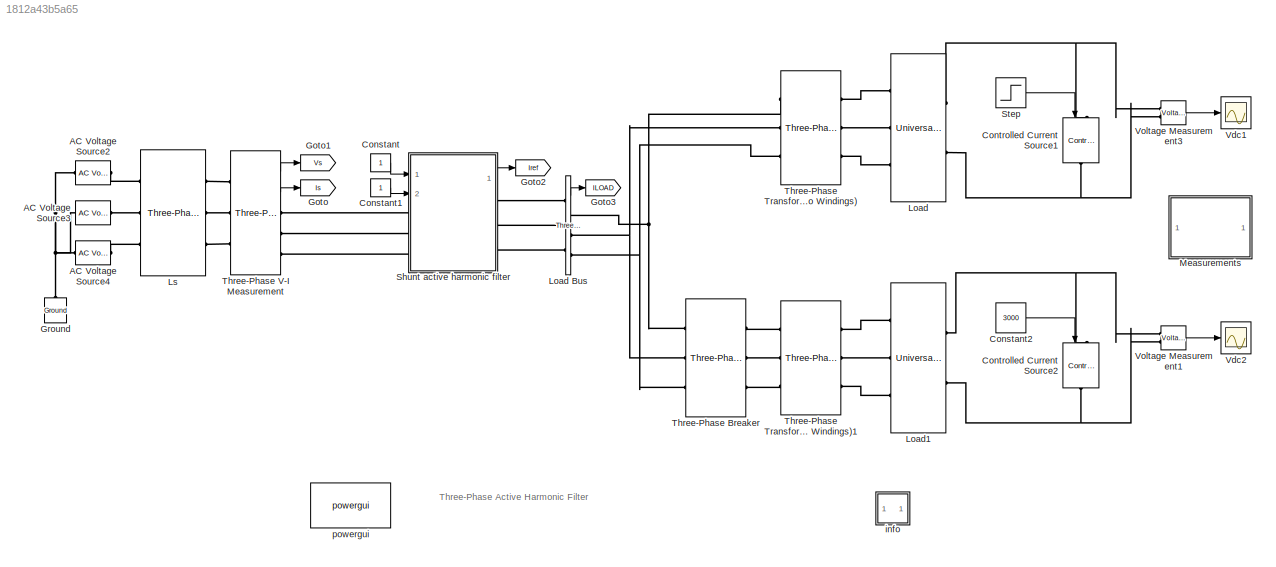
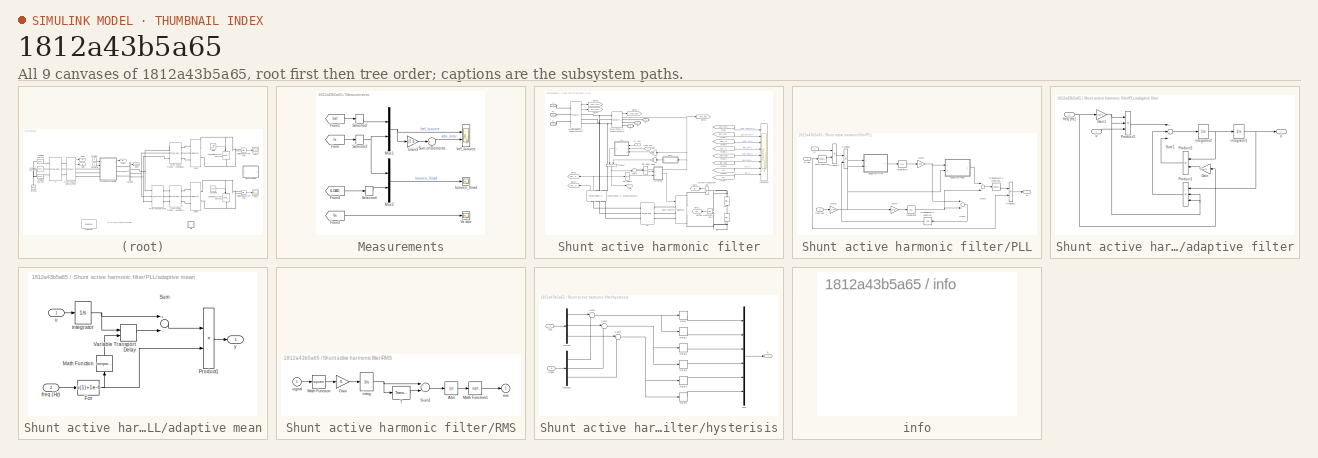
[diagram: thumbnail index - all 9 canvases of the model, root first then tree order]
MODEL slx_1812a43b5a65
KIND model
CONFIG AbsTol = auto
CONFIG EnableMultiTasking = on
CONFIG FixedStep = auto
CONFIG InitFcn = Ts=2e-6;\nload power_active_filter.mat
CONFIG MaxStep = auto
CONFIG MinStep = auto
CONFIG PreLoadFcn = load power_active_filter.mat
CONFIG RelTol = 1e-3
CONFIG SampleTimeConstraint = Unconstrained
CONFIG Solver = ode45
CONFIG SolverName = ode45
CONFIG StartTime = 0.0
CONFIG StopTime = 15/60
BLOCK [Reference] AC Voltage Source2  REF=powerlib/Electrical
Sources/AC Voltage Source
  Ports = [0, 0, 0, 0, 0, 1, 1]
  SourceBlock = powerlib/Electrical\nSources/AC Voltage Source
  SourceProductBaseCode = PS
  SourceProductName = Simscape Power Systems
  SourceType = AC Voltage Source
BLOCK [Reference] AC Voltage Source3  REF=powerlib/Electrical
Sources/AC Voltage Source
  Ports = [0, 0, 0, 0, 0, 1, 1]
  SourceBlock = powerlib/Electrical\nSources/AC Voltage Source
  SourceProductBaseCode = PS
  SourceProductName = Simscape Power Systems
  SourceType = AC Voltage Source
BLOCK [Reference] AC Voltage Source4  REF=powerlib/Electrical
Sources/AC Voltage Source
  Ports = [0, 0, 0, 0, 0, 1, 1]
  SourceBlock = powerlib/Electrical\nSources/AC Voltage Source
  SourceProductBaseCode = PS
  SourceProductName = Simscape Power Systems
  SourceType = AC Voltage Source
BLOCK [Constant] Constant
BLOCK [Constant] Constant1
BLOCK [Constant] Constant2
  Value = 3000
BLOCK [Reference] Controlled Current Source1  REF=powerlib/Electrical
Sources/Controlled Current Source
  Ports = [1, 0, 0, 0, 0, 1, 1]
  SourceBlock = powerlib/Electrical\nSources/Controlled Current Source
  SourceProductBaseCode = PS
  SourceProductName = Simscape Power Systems
  SourceType = Controlled Current Source
BLOCK [Reference] Controlled Current Source2  REF=powerlib/Electrical
Sources/Controlled Current Source
  Ports = [1, 0, 0, 0, 0, 1, 1]
  SourceBlock = powerlib/Electrical\nSources/Controlled Current Source
  SourceProductBaseCode = PS
  SourceProductName = Simscape Power Systems
  SourceType = Controlled Current Source
BLOCK [Goto] Goto
  GotoTag = Is
  TagVisibility = global
BLOCK [Goto] Goto1
  GotoTag = Vs
  TagVisibility = global
BLOCK [Goto] Goto2
  GotoTag = Iref
  TagVisibility = global
BLOCK [Goto] Goto3
  GotoTag = ILOAD
  TagVisibility = global
BLOCK [Reference] Ground  REF=powerlib/Elements/Ground
  Ports = [0, 0, 0, 0, 0, 1]
  SourceBlock = powerlib/Elements/Ground
  SourceProductBaseCode = PS
  SourceProductName = Simscape Power Systems
  SourceType = Ground
BLOCK [Reference] Load  REF=powerlib/Power
Electronics/Universal Bridge
  Ports = [0, 0, 0, 0, 0, 3, 2]
  SourceBlock = powerlib/Power\nElectronics/Universal Bridge
  SourceProductBaseCode = PS
  SourceProductName = Simscape Power Systems
  SourceType = Universal Bridge
BLOCK [Reference] Load Bus  REF=powerlib/Measurements/Three-Phase
V-I Measurement
  Ports = [0, 1, 0, 0, 0, 3, 3]
  SourceBlock = powerlib/Measurements/Three-Phase\nV-I Measurement
  SourceProductBaseCode = PS
  SourceProductName = Simscape Power Systems
  SourceType = Three-Phase VI Measurement
BLOCK [Reference] Load1  REF=powerlib/Power
Electronics/Universal Bridge
  Ports = [0, 0, 0, 0, 0, 3, 2]
  SourceBlock = powerlib/Power\nElectronics/Universal Bridge
  SourceProductBaseCode = PS
  SourceProductName = Simscape Power Systems
  SourceType = Universal Bridge
BLOCK [Reference] Ls  REF=powerlib/Elements/Three-Phase
Series RLC Branch
  AttributesFormatString = \n
  Ports = [0, 0, 0, 0, 0, 3, 3]
  SourceBlock = powerlib/Elements/Three-Phase\nSeries RLC Branch
  SourceProductBaseCode = PS
  SourceProductName = Simscape Power Systems
  SourceType = Three-Phase Series RLC Branch
BLOCK [SubSystem] Measurements
  Ports = []
  RequestExecContextInheritance = off
  Variant = off
BLOCK [From] Measurements/From
  CloseFcn = tagdialog Close
  GotoTag = Is
  TagVisibility = global
BLOCK [From] Measurements/From1
  CloseFcn = tagdialog Close
  GotoTag = Iref
  TagVisibility = global
BLOCK [From] Measurements/From3
  CloseFcn = tagdialog Close
  GotoTag = Vs
  TagVisibility = global
BLOCK [From] Measurements/From4
  CloseFcn = tagdialog Close
  GotoTag = ILOAD
  TagVisibility = global
BLOCK [Gain] Measurements/Gain3
  Gain = [1 -1]
  OutDataTypeStr = Inherit: Inherit via internal rule
  ParamDataTypeStr = Inherit: Inherit via internal rule
  SaturateOnIntegerOverflow = off
BLOCK [Scope] Measurements/Iref_Isource
  NumInputPorts = 2
  Ports = [2]
  ScopeSpecificationString = C++SS(StrPVP('Location','[188, 365, 512, 604]'),StrPVP('Open','off'),MxPVP('AxesTitles',53,'struct(''axes1'',''%<SignalLabel>'',''axes2'',''%<SignalLabel>'')'),StrPVP('ShowLegends','off'),StrPVP('LimitDataPoints','off'),StrPVP('DataFormat','Array'),StrPVP('Decimation','1'),StrPVP('BlockParamSampleInput','off'))
BLOCK [Scope] Measurements/Isource_Iload
  NumInputPorts = 1
  Ports = [1]
  ScopeSpecificationString = C++SS(StrPVP('Location','[188, 365, 512, 604]'),StrPVP('Open','off'),MxPVP('AxesTitles',53,'struct(''axes1'',''%<SignalLabel>'')'),StrPVP('ShowLegends','off'),StrPVP('LimitDataPoints','off'),StrPVP('DataFormat','Array'),StrPVP('Decimation','1'),StrPVP('BlockParamSampleInput','off'))
BLOCK [Mux] Measurements/Mux1
  DisplayOption = bar
  Inputs = 2
  Ports = [2, 1]
BLOCK [Mux] Measurements/Mux2
  DisplayOption = bar
  Inputs = 2
  Ports = [2, 1]
BLOCK [Selector] Measurements/Selector2
  IndexOptions = Index vector (dialog)
  Indices = 1
  InputPortWidth = 3
  OutputSizes = 1
  Ports = [1, 1]
BLOCK [Selector] Measurements/Selector3
  IndexOptions = Index vector (dialog)
  Indices = 1
  InputPortWidth = 3
  OutputSizes = 1
  Ports = [1, 1]
BLOCK [Selector] Measurements/Selector4
  IndexOptions = Index vector (dialog)
  Indices = 1
  InputPortWidth = 3
  OutputSizes = 1
  Ports = [1, 1]
BLOCK [Sum] Measurements/Sum of Elements
  InputSameDT = off
  Inputs = +
  OutDataTypeStr = Inherit: Inherit via internal rule
  Ports = [1, 1]
  SaturateOnIntegerOverflow = off
BLOCK [Scope] Measurements/Vs abc
  NumInputPorts = 1
  Ports = [1]
  ScopeSpecificationString = C++SS(StrPVP('Location','[188, 365, 512, 604]'),StrPVP('Open','off'),MxPVP('AxesTitles',53,'struct(''axes1'',''%<SignalLabel>'')'),StrPVP('ShowLegends','off'),StrPVP('LimitDataPoints','off'),StrPVP('DataFormat','Array'),StrPVP('Decimation','1'),StrPVP('BlockParamSampleInput','off'))
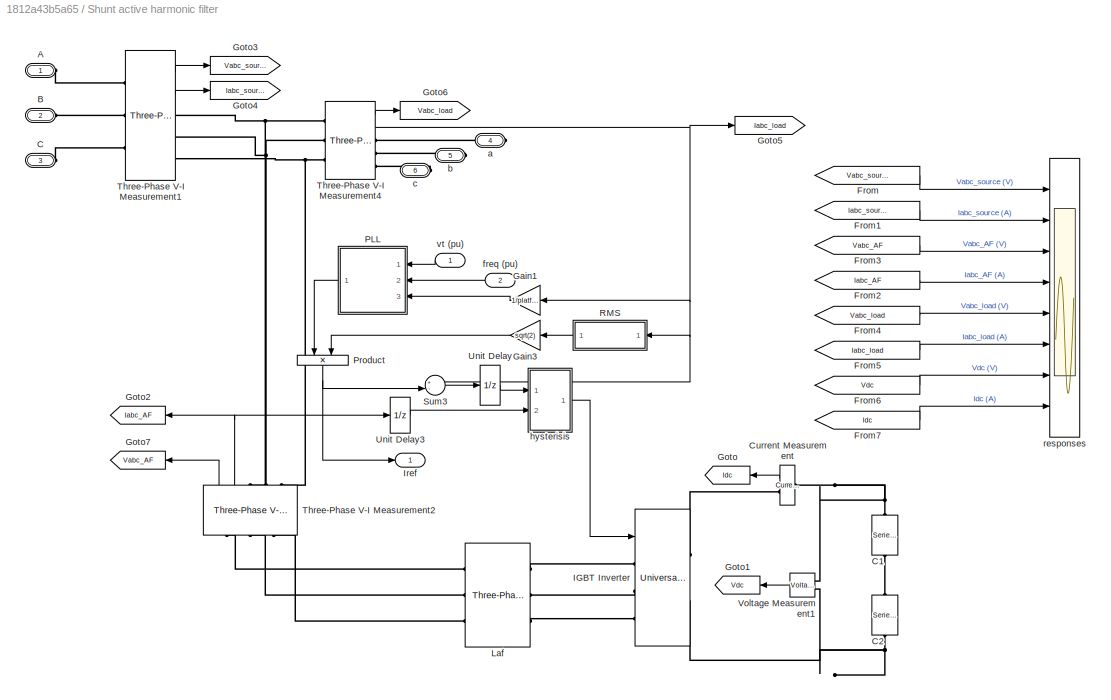
BLOCK [SubSystem] Shunt active harmonic filter
  Ports = [2, 1, 0, 0, 0, 3, 3]
  RequestExecContextInheritance = off
  Variant = off
BLOCK [PMIOPort] Shunt active harmonic filter/A
  Port = 1
  Side = Left
BLOCK [PMIOPort] Shunt active harmonic filter/B
  Port = 2
  Side = Left
BLOCK [PMIOPort] Shunt active harmonic filter/C
  Port = 3
  Side = Left
BLOCK [Reference] Shunt active harmonic filter/C1  REF=powerlib/Elements/Series RLC Branch
  Ports = [0, 0, 0, 0, 0, 1, 1]
  SourceBlock = powerlib/Elements/Series RLC Branch
  SourceProductBaseCode = PS
  SourceProductName = Simscape Power Systems
  SourceType = Series RLC Branch
BLOCK [Reference] Shunt active harmonic filter/C2  REF=powerlib/Elements/Series RLC Branch
  Ports = [0, 0, 0, 0, 0, 1, 1]
  SourceBlock = powerlib/Elements/Series RLC Branch
  SourceProductBaseCode = PS
  SourceProductName = Simscape Power Systems
  SourceType = Series RLC Branch
BLOCK [Reference] Shunt active harmonic filter/Current Measurement  REF=powerlib/Measurements/Current Measurement
  Ports = [0, 1, 0, 0, 0, 1, 1]
  SourceBlock = powerlib/Measurements/Current Measurement
  SourceProductBaseCode = PS
  SourceProductName = Simscape Power Systems
  SourceType = Current Measurement
BLOCK [From] Shunt active harmonic filter/From
  CloseFcn = tagdialog Close
  GotoTag = Vabc_source
BLOCK [From] Shunt active harmonic filter/From1
  CloseFcn = tagdialog Close
  GotoTag = Iabc_source
BLOCK [From] Shunt active harmonic filter/From2
  CloseFcn = tagdialog Close
  GotoTag = Iabc_AF
BLOCK [From] Shunt active harmonic filter/From3
  CloseFcn = tagdialog Close
  GotoTag = Vabc_AF
BLOCK [From] Shunt active harmonic filter/From4
  CloseFcn = tagdialog Close
  GotoTag = Vabc_load
BLOCK [From] Shunt active harmonic filter/From5
  CloseFcn = tagdialog Close
  GotoTag = Iabc_load
BLOCK [From] Shunt active harmonic filter/From6
  CloseFcn = tagdialog Close
  GotoTag = Vdc
  TagVisibility = global
BLOCK [From] Shunt active harmonic filter/From7
  CloseFcn = tagdialog Close
  GotoTag = Idc
BLOCK [Gain] Shunt active harmonic filter/Gain1
  Gain = 1/platform.activefilter.max_current
  OutDataTypeStr = Inherit: Inherit via internal rule
  ParamDataTypeStr = Inherit: Inherit via internal rule
  SaturateOnIntegerOverflow = off
BLOCK [Gain] Shunt active harmonic filter/Gain3
  Gain = sqrt(2)
  OutDataTypeStr = Inherit: Inherit via internal rule
  ParamDataTypeStr = Inherit: Inherit via internal rule
  SaturateOnIntegerOverflow = off
BLOCK [Goto] Shunt active harmonic filter/Goto
  GotoTag = Idc
BLOCK [Goto] Shunt active harmonic filter/Goto1
  GotoTag = Vdc
  TagVisibility = global
BLOCK [Goto] Shunt active harmonic filter/Goto2
  GotoTag = Iabc_AF
BLOCK [Goto] Shunt active harmonic filter/Goto3
  GotoTag = Vabc_source
BLOCK [Goto] Shunt active harmonic filter/Goto4
  GotoTag = Iabc_source
BLOCK [Goto] Shunt active harmonic filter/Goto5
  GotoTag = Iabc_load
BLOCK [Goto] Shunt active harmonic filter/Goto6
  GotoTag = Vabc_load
BLOCK [Goto] Shunt active harmonic filter/Goto7
  GotoTag = Vabc_AF
BLOCK [Reference] Shunt active harmonic filter/IGBT Inverter  REF=powerlib/Power
Electronics/Universal Bridge
  Ports = [1, 0, 0, 0, 0, 3, 2]
  SourceBlock = powerlib/Power\nElectronics/Universal Bridge
  SourceProductBaseCode = PS
  SourceProductName = Simscape Power Systems
  SourceType = Universal Bridge
BLOCK [Outport] Shunt active harmonic filter/Iref
  IconDisplay = Port number
BLOCK [Reference] Shunt active harmonic filter/Laf  REF=powerlib/Elements/Three-Phase
Series RLC Branch
  AttributesFormatString = \n
  Ports = [0, 0, 0, 0, 0, 3, 3]
  SourceBlock = powerlib/Elements/Three-Phase\nSeries RLC Branch
  SourceProductBaseCode = PS
  SourceProductName = Simscape Power Systems
  SourceType = Three-Phase Series RLC Branch
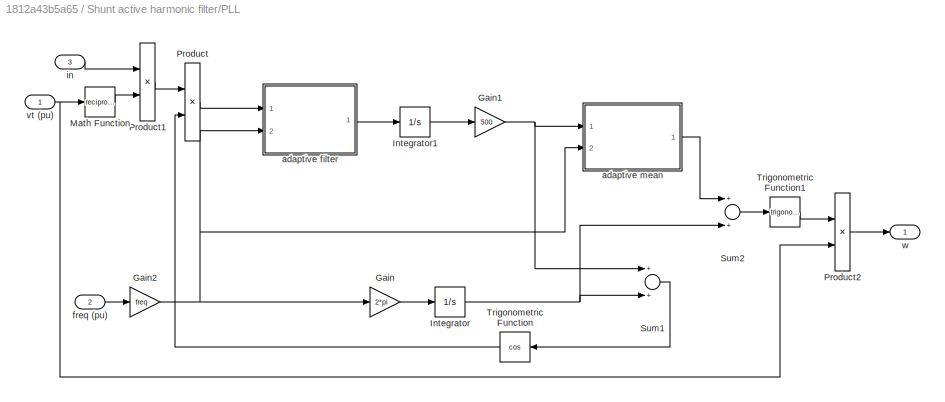
BLOCK [SubSystem] Shunt active harmonic filter/PLL
  Ports = [3, 1]
  RequestExecContextInheritance = off
  Variant = off
BLOCK [Gain] Shunt active harmonic filter/PLL/Gain
  Gain = 2*pi
  OutDataTypeStr = Inherit: Inherit via internal rule
  ParamDataTypeStr = Inherit: Inherit via internal rule
  SaturateOnIntegerOverflow = off
BLOCK [Gain] Shunt active harmonic filter/PLL/Gain1
  Gain = 500
  OutDataTypeStr = Inherit: Inherit via internal rule
  ParamDataTypeStr = Inherit: Inherit via internal rule
  SaturateOnIntegerOverflow = off
BLOCK [Gain] Shunt active harmonic filter/PLL/Gain2
  Gain = freq
  OutDataTypeStr = Inherit: Inherit via internal rule
  ParamDataTypeStr = Inherit: Inherit via internal rule
  SaturateOnIntegerOverflow = off
BLOCK [Integrator] Shunt active harmonic filter/PLL/Integrator
  Ports = [1, 1]
BLOCK [Integrator] Shunt active harmonic filter/PLL/Integrator1
  Ports = [1, 1]
BLOCK [Math] Shunt active harmonic filter/PLL/Math Function
  Operator = reciprocal
  Ports = [1, 1]
BLOCK [Product] Shunt active harmonic filter/PLL/Product
  InputSameDT = off
  Inputs = **
  OutDataTypeStr = Inherit: Inherit via internal rule
  Ports = [2, 1]
  SaturateOnIntegerOverflow = off
BLOCK [Product] Shunt active harmonic filter/PLL/Product1
  InputSameDT = off
  Inputs = **
  OutDataTypeStr = Inherit: Inherit via internal rule
  Ports = [2, 1]
  SaturateOnIntegerOverflow = off
BLOCK [Product] Shunt active harmonic filter/PLL/Product2
  InputSameDT = off
  Inputs = **
  OutDataTypeStr = Inherit: Inherit via internal rule
  Ports = [2, 1]
  SaturateOnIntegerOverflow = off
BLOCK [Sum] Shunt active harmonic filter/PLL/Sum1
  Ports = [2, 1]
BLOCK [Sum] Shunt active harmonic filter/PLL/Sum2
  Ports = [2, 1]
BLOCK [Trigonometry] Shunt active harmonic filter/PLL/Trigonometric Function
  Operator = cos
  Ports = [1, 1]
BLOCK [Trigonometry] Shunt active harmonic filter/PLL/Trigonometric Function1
  Ports = [1, 1]
BLOCK [SubSystem] Shunt active harmonic filter/PLL/adaptive filter
  Ports = [2, 1]
  RequestExecContextInheritance = off
  Variant = off
BLOCK [Gain] Shunt active harmonic filter/PLL/adaptive filter/Gain
  Gain = 2*pi*2*0.707*2
  OutDataTypeStr = Inherit: Inherit via internal rule
  ParamDataTypeStr = Inherit: Inherit via internal rule
  SaturateOnIntegerOverflow = off
BLOCK [Gain] Shunt active harmonic filter/PLL/adaptive filter/Gain1
  Gain = 2*pi*2
  OutDataTypeStr = Inherit: Inherit via internal rule
  ParamDataTypeStr = Inherit: Inherit via internal rule
  SaturateOnIntegerOverflow = off
BLOCK [Product] Shunt active harmonic filter/PLL/adaptive filter/Product1
  InputSameDT = off
  Inputs = ***
  OutDataTypeStr = Inherit: Inherit via internal rule
  Ports = [3, 1]
  SaturateOnIntegerOverflow = off
BLOCK [Product] Shunt active harmonic filter/PLL/adaptive filter/Product2
  InputSameDT = off
  Inputs = **
  OutDataTypeStr = Inherit: Inherit via internal rule
  Ports = [2, 1]
  SaturateOnIntegerOverflow = off
BLOCK [Product] Shunt active harmonic filter/PLL/adaptive filter/Product3
  InputSameDT = off
  Inputs = ***
  OutDataTypeStr = Inherit: Inherit via internal rule
  Ports = [3, 1]
  SaturateOnIntegerOverflow = off
BLOCK [Sum] Shunt active harmonic filter/PLL/adaptive filter/Sum1
  Inputs = +--
  Ports = [3, 1]
BLOCK [Inport] Shunt active harmonic filter/PLL/adaptive filter/freq (Hz)
  IconDisplay = Port number
  Port = 2
BLOCK [Integrator] Shunt active harmonic filter/PLL/adaptive filter/integrator1
  Ports = [1, 1]
BLOCK [Integrator] Shunt active harmonic filter/PLL/adaptive filter/integrator2
  Ports = [1, 1]
BLOCK [Inport] Shunt active harmonic filter/PLL/adaptive filter/u
  IconDisplay = Port number
BLOCK [Outport] Shunt active harmonic filter/PLL/adaptive filter/y
  IconDisplay = Port number
BLOCK [SubSystem] Shunt active harmonic filter/PLL/adaptive mean
  Ports = [2, 1]
  RequestExecContextInheritance = off
  Variant = off
BLOCK [Fcn] Shunt active harmonic filter/PLL/adaptive mean/Fcn
  Expr = u(1)+1e-6
BLOCK [Math] Shunt active harmonic filter/PLL/adaptive mean/Math Function
  Operator = reciprocal
  Ports = [1, 1]
BLOCK [Product] Shunt active harmonic filter/PLL/adaptive mean/Product1
  InputSameDT = off
  Inputs = **
  OutDataTypeStr = Inherit: Inherit via internal rule
  Ports = [2, 1]
  SaturateOnIntegerOverflow = off
BLOCK [Sum] Shunt active harmonic filter/PLL/adaptive mean/Sum
  Inputs = +-
  Ports = [2, 1]
BLOCK [VariableTransportDelay] Shunt active harmonic filter/PLL/adaptive mean/Variable Transport Delay
  MaximumDelay = 1/40
  MaximumPoints = 16000
  Ports = [2, 1]
BLOCK [Inport] Shunt active harmonic filter/PLL/adaptive mean/freq (Hz)
  IconDisplay = Port number
  Port = 2
BLOCK [Integrator] Shunt active harmonic filter/PLL/adaptive mean/integrator
  Ports = [1, 1]
BLOCK [Inport] Shunt active harmonic filter/PLL/adaptive mean/u
  IconDisplay = Port number
BLOCK [Outport] Shunt active harmonic filter/PLL/adaptive mean/y
  IconDisplay = Port number
BLOCK [Inport] Shunt active harmonic filter/PLL/freq (pu)
  IconDisplay = Port number
  Port = 2
BLOCK [Inport] Shunt active harmonic filter/PLL/in
  IconDisplay = Port number
  Port = 3
BLOCK [Inport] Shunt active harmonic filter/PLL/vt (pu)
  IconDisplay = Port number
BLOCK [Outport] Shunt active harmonic filter/PLL/w
  IconDisplay = Port number
BLOCK [Product] Shunt active harmonic filter/Product
  InputSameDT = off
  OutDataTypeStr = Inherit: Inherit via internal rule
  Ports = [2, 1]
  SaturateOnIntegerOverflow = off
BLOCK [SubSystem] Shunt active harmonic filter/RMS
  DialogController = POWERSYS.PowerSysDialog
  Ports = [1, 1]
  RequestExecContextInheritance = off
  Variant = off
BLOCK [Abs] Shunt active harmonic filter/RMS/Abs
BLOCK [Gain] Shunt active harmonic filter/RMS/Gain
  Gain = f1
BLOCK [Math] Shunt active harmonic filter/RMS/Math Function
  Operator = square
  Ports = [1, 1]
BLOCK [Math] Shunt active harmonic filter/RMS/Math Function1
  Operator = sqrt
  Ports = [1, 1]
BLOCK [Sum] Shunt active harmonic filter/RMS/Sum1
  Inputs = +-
  Ports = [2, 1]
BLOCK [TransportDelay] Shunt active harmonic filter/RMS/T
  BufferSize = 9216
  DelayTime = 1/f1
  Ports = [1, 1]
BLOCK [Integrator] Shunt active harmonic filter/RMS/integ
  Ports = [1, 1]
BLOCK [Outport] Shunt active harmonic filter/RMS/rms
  IconDisplay = Port number
  InitialOutput = 0
BLOCK [Inport] Shunt active harmonic filter/RMS/signal
  IconDisplay = Port number
BLOCK [Sum] Shunt active harmonic filter/Sum3
  IconShape = round
  InputSameDT = off
  Inputs = +-|
  OutDataTypeStr = Inherit: Inherit via internal rule
  Ports = [2, 1]
  SaturateOnIntegerOverflow = off
BLOCK [Reference] Shunt active harmonic filter/Three-Phase V-I Measurement1  REF=powerlib/Measurements/Three-Phase
V-I Measurement
  Ports = [0, 2, 0, 0, 0, 3, 3]
  SourceBlock = powerlib/Measurements/Three-Phase\nV-I Measurement
  SourceProductBaseCode = PS
  SourceProductName = Simscape Power Systems
  SourceType = Three-Phase VI Measurement
BLOCK [Reference] Shunt active harmonic filter/Three-Phase V-I Measurement2  REF=powerlib/Measurements/Three-Phase
V-I Measurement
  Ports = [0, 2, 0, 0, 0, 3, 3]
  SourceBlock = powerlib/Measurements/Three-Phase\nV-I Measurement
  SourceProductBaseCode = PS
  SourceProductName = Simscape Power Systems
  SourceType = Three-Phase VI Measurement
BLOCK [Reference] Shunt active harmonic filter/Three-Phase V-I Measurement4  REF=powerlib/Measurements/Three-Phase
V-I Measurement
  Ports = [0, 2, 0, 0, 0, 3, 3]
  SourceBlock = powerlib/Measurements/Three-Phase\nV-I Measurement
  SourceProductBaseCode = PS
  SourceProductName = Simscape Power Systems
  SourceType = Three-Phase VI Measurement
BLOCK [UnitDelay] Shunt active harmonic filter/Unit Delay
  SampleTime = Ts
BLOCK [UnitDelay] Shunt active harmonic filter/Unit Delay3
  SampleTime = Ts
BLOCK [Reference] Shunt active harmonic filter/Voltage Measurement1  REF=powerlib/Measurements/Voltage Measurement
  Ports = [0, 1, 0, 0, 0, 2]
  SourceBlock = powerlib/Measurements/Voltage Measurement
  SourceProductBaseCode = PS
  SourceProductName = Simscape Power Systems
  SourceType = Voltage Measurement
BLOCK [PMIOPort] Shunt active harmonic filter/a
  Port = 4
  Side = Right
BLOCK [PMIOPort] Shunt active harmonic filter/b
  Port = 5
  Side = Right
BLOCK [PMIOPort] Shunt active harmonic filter/c
  Port = 6
  Side = Right
BLOCK [Inport] Shunt active harmonic filter/freq (pu)
  IconDisplay = Port number
  Port = 2
BLOCK [SubSystem] Shunt active harmonic filter/hysterisis
  Ports = [2, 1]
  RequestExecContextInheritance = off
  Variant = off
BLOCK [Demux] Shunt active harmonic filter/hysterisis/Demux
  DisplayOption = bar
  Outputs = 3
  Ports = [1, 3]
BLOCK [Demux] Shunt active harmonic filter/hysterisis/Demux1
  DisplayOption = bar
  Outputs = 3
  Ports = [1, 3]
BLOCK [Mux] Shunt active harmonic filter/hysterisis/Mux
  DisplayOption = bar
  Inputs = 6
  Ports = [6, 1]
BLOCK [Relay] Shunt active harmonic filter/hysterisis/Relay
BLOCK [Relay] Shunt active harmonic filter/hysterisis/Relay1
  OffOutputValue = 1
  OnOutputValue = 0
BLOCK [Relay] Shunt active harmonic filter/hysterisis/Relay2
BLOCK [Relay] Shunt active harmonic filter/hysterisis/Relay3
  OffOutputValue = 1
  OnOutputValue = 0
BLOCK [Relay] Shunt active harmonic filter/hysterisis/Relay4
BLOCK [Relay] Shunt active harmonic filter/hysterisis/Relay5
  OffOutputValue = 1
  OnOutputValue = 0
BLOCK [Sum] Shunt active harmonic filter/hysterisis/Sum1
  IconShape = round
  InputSameDT = off
  Inputs = |+-
  OutDataTypeStr = Inherit: Inherit via internal rule
  Ports = [2, 1]
  SaturateOnIntegerOverflow = off
BLOCK [Sum] Shunt active harmonic filter/hysterisis/Sum2
  IconShape = round
  InputSameDT = off
  Inputs = |+-
  OutDataTypeStr = Inherit: Inherit via internal rule
  Ports = [2, 1]
  SaturateOnIntegerOverflow = off
BLOCK [Sum] Shunt active harmonic filter/hysterisis/Sum3
  IconShape = round
  InputSameDT = off
  Inputs = |+-
  OutDataTypeStr = Inherit: Inherit via internal rule
  Ports = [2, 1]
  SaturateOnIntegerOverflow = off
BLOCK [Outport] Shunt active harmonic filter/hysterisis/g
  IconDisplay = Port number
BLOCK [Inport] Shunt active harmonic filter/hysterisis/imeas
  IconDisplay = Port number
  Port = 2
BLOCK [Inport] Shunt active harmonic filter/hysterisis/iref
  IconDisplay = Port number
BLOCK [Scope] Shunt active harmonic filter/responses
  NumInputPorts = 8
  Ports = [8]
  ScopeSpecificationString = C++SS(StrPVP('Location','[188, 365, 512, 604]'),StrPVP('Open','off'),MxPVP('AxesTitles',53,'struct(''axes1'',''%<SignalLabel>'',''axes2'',''%<SignalLabel>'',''axes3'',''%<SignalLabel>'',''axes4'',''%<SignalLabel>'',''axes5'',''%<SignalLabel>'',''axes6'',''%<SignalLabel>'',''axes7'',''%<SignalLabel>'',''axes8'',''%<SignalLabel>'')'),StrPVP('ShowLegends','off'),StrPVP('LimitDataPoints','off'),StrPVP...<+86ch>
BLOCK [Inport] Shunt active harmonic filter/vt (pu)
  IconDisplay = Port number
BLOCK [Step] Step
  After = 3000
  Before = 2000
  SampleTime = 0
  Time = 5/60
BLOCK [Reference] Three-Phase Breaker  REF=powerlib/Elements/Three-Phase Breaker
  Ports = [0, 0, 0, 0, 0, 3, 3]
  SourceBlock = powerlib/Elements/Three-Phase Breaker
  SourceProductBaseCode = PS
  SourceProductName = Simscape Power Systems
  SourceType = Three-Phase Breaker
BLOCK [Reference] Three-Phase Transformer (Two Windings)  REF=powerlib/Elements/Three-Phase
Transformer
(Two Windings)
  Ports = [0, 0, 0, 0, 0, 3, 3]
  SourceBlock = powerlib/Elements/Three-Phase\nTransformer\n(Two Windings)
  SourceProductBaseCode = PS
  SourceProductName = Simscape Power Systems
  SourceType = Three-Phase Transformer (Two Windings)
BLOCK [Reference] Three-Phase Transformer (Two Windings)1  REF=powerlib/Elements/Three-Phase
Transformer
(Two Windings)
  Ports = [0, 0, 0, 0, 0, 3, 3]
  SourceBlock = powerlib/Elements/Three-Phase\nTransformer\n(Two Windings)
  SourceProductBaseCode = PS
  SourceProductName = Simscape Power Systems
  SourceType = Three-Phase Transformer (Two Windings)
BLOCK [Reference] Three-Phase V-I Measurement  REF=powerlib/Measurements/Three-Phase
V-I Measurement
  Ports = [0, 2, 0, 0, 0, 3, 3]
  SourceBlock = powerlib/Measurements/Three-Phase\nV-I Measurement
  SourceProductBaseCode = PS
  SourceProductName = Simscape Power Systems
  SourceType = Three-Phase VI Measurement
BLOCK [Scope] Vdc1
  NumInputPorts = 1
  Ports = [1]
  ScopeSpecificationString = C++SS(StrPVP('Location','[850, 215, 1174, 454]'),StrPVP('Open','off'),MxPVP('AxesTitles',53,'struct(''axes1'',''%<SignalLabel>'')'),MxPVP('ScopeGraphics',56,'struct(''FigureColor'',''[0.5 0.5 0.5]'',''AxesColor'',''[0 0 0]'',''AxesTickColor'',''[1 1 1]'',''LineColors'',''[1 1 0;1 0 1;0 1 1;1 0 0;0 1 0;0 0 1]'',''LineStyles'',''-|-|-|-|-|-'',''LineWidths'',''[0.5 0.5 0.5 0.5 0.5 0.5]'',''MarkerStyl...<+280ch>
BLOCK [Scope] Vdc2
  NumInputPorts = 1
  Ports = [1]
  ScopeSpecificationString = C++SS(StrPVP('Location','[852, 524, 1176, 763]'),StrPVP('Open','off'),MxPVP('AxesTitles',53,'struct(''axes1'',''%<SignalLabel>'')'),MxPVP('ScopeGraphics',56,'struct(''FigureColor'',''[0.5 0.5 0.5]'',''AxesColor'',''[0 0 0]'',''AxesTickColor'',''[1 1 1]'',''LineColors'',''[1 1 0;1 0 1;0 1 1;1 0 0;0 1 0;0 0 1]'',''LineStyles'',''-|-|-|-|-|-'',''LineWidths'',''[0.5 0.5 0.5 0.5 0.5 0.5]'',''MarkerStyl...<+280ch>
BLOCK [Reference] Voltage Measurement1  REF=powerlib/Measurements/Voltage Measurement
  Ports = [0, 1, 0, 0, 0, 2]
  SourceBlock = powerlib/Measurements/Voltage Measurement
  SourceProductBaseCode = PS
  SourceProductName = Simscape Power Systems
  SourceType = Voltage Measurement
BLOCK [Reference] Voltage Measurement3  REF=powerlib/Measurements/Voltage Measurement
  Ports = [0, 1, 0, 0, 0, 2]
  SourceBlock = powerlib/Measurements/Voltage Measurement
  SourceProductBaseCode = PS
  SourceProductName = Simscape Power Systems
  SourceType = Voltage Measurement
BLOCK [SubSystem] info
  OpenFcn = showdemo(bdroot(gcb))
  Ports = []
  RequestExecContextInheritance = off
  Variant = off
BLOCK [Reference] powergui  REF=powerlib/powergui
  Ports = []
  SourceBlock = powerlib/powergui
  SourceProductBaseCode = PS
  SourceProductName = Simscape Power Systems
  SourceType = PSB option menu block
ANNOTATION (root): Three-Phase Active Harmonic Filter
LINE Constant1:1 -> Shunt active harmonic filter:2
LINE Constant2:1 -> Controlled Current Source2:1
LINE Constant:1 -> Shunt active harmonic filter:1
LINE Load Bus:1 -> Goto3:1
LINE Measurements/From1:1 -> Measurements/Selector2:1
LINE Measurements/From3:1 -> Measurements/Vs abc:1
LINE Measurements/From4:1 -> Measurements/Selector4:1
LINE Measurements/From:1 -> Measurements/Selector3:1
LINE Measurements/Gain3:1 -> Measurements/Sum of Elements:1
NET Measurements/Mux1:1 -> Measurements/Gain3:1, Measurements/Iref_Isource:1
LINE Measurements/Mux2:1 -> Measurements/Isource_Iload:1
LINE Measurements/Selector2:1 -> Measurements/Mux1:1
NET Measurements/Selector3:1 -> Measurements/Mux1:2, Measurements/Mux2:1
LINE Measurements/Selector4:1 -> Measurements/Mux2:2
LINE Measurements/Sum of Elements:1 -> Measurements/Iref_Isource:2
LINE Shunt active harmonic filter/Current Measurement:1 -> Shunt active harmonic filter/Goto:1
LINE Shunt active harmonic filter/From1:1 -> Shunt active harmonic filter/responses:2
LINE Shunt active harmonic filter/From2:1 -> Shunt active harmonic filter/responses:4
LINE Shunt active harmonic filter/From3:1 -> Shunt active harmonic filter/responses:3
LINE Shunt active harmonic filter/From4:1 -> Shunt active harmonic filter/responses:5
LINE Shunt active harmonic filter/From5:1 -> Shunt active harmonic filter/responses:6
LINE Shunt active harmonic filter/From6:1 -> Shunt active harmonic filter/responses:7
LINE Shunt active harmonic filter/From7:1 -> Shunt active harmonic filter/responses:8
LINE Shunt active harmonic filter/From:1 -> Shunt active harmonic filter/responses:1
LINE Shunt active harmonic filter/Gain1:1 -> Shunt active harmonic filter/PLL:3
LINE Shunt active harmonic filter/Gain3:1 -> Shunt active harmonic filter/Product:2
NET Shunt active harmonic filter/PLL/Gain1:1 -> Shunt active harmonic filter/PLL/Sum1:1, Shunt active harmonic filter/PLL/adaptive mean:1
NET Shunt active harmonic filter/PLL/Gain2:1 -> Shunt active harmonic filter/PLL/Gain:1, Shunt active harmonic filter/PLL/adaptive filter:2, Shunt active harmonic filter/PLL/adaptive mean:2
LINE Shunt active harmonic filter/PLL/Gain:1 -> Shunt active harmonic filter/PLL/Integrator:1
LINE Shunt active harmonic filter/PLL/Integrator1:1 -> Shunt active harmonic filter/PLL/Gain1:1
NET Shunt active harmonic filter/PLL/Integrator:1 -> Shunt active harmonic filter/PLL/Sum1:2, Shunt active harmonic filter/PLL/Sum2:2
LINE Shunt active harmonic filter/PLL/Math Function:1 -> Shunt active harmonic filter/PLL/Product1:2
LINE Shunt active harmonic filter/PLL/Product1:1 -> Shunt active harmonic filter/PLL/Product:1
LINE Shunt active harmonic filter/PLL/Product2:1 -> Shunt active harmonic filter/PLL/w:1
LINE Shunt active harmonic filter/PLL/Product:1 -> Shunt active harmonic filter/PLL/adaptive filter:1
LINE Shunt active harmonic filter/PLL/Sum1:1 -> Shunt active harmonic filter/PLL/Trigonometric Function:1
LINE Shunt active harmonic filter/PLL/Sum2:1 -> Shunt active harmonic filter/PLL/Trigonometric Function1:1
LINE Shunt active harmonic filter/PLL/Trigonometric Function1:1 -> Shunt active harmonic filter/PLL/Product2:1
LINE Shunt active harmonic filter/PLL/Trigonometric Function:1 -> Shunt active harmonic filter/PLL/Product:2
NET Shunt active harmonic filter/PLL/adaptive filter/Gain1:1 -> Shunt active harmonic filter/PLL/adaptive filter/Product1:2, Shunt active harmonic filter/PLL/adaptive filter/Product1:3, Shunt active harmonic filter/PLL/adaptive filter/Product3:1, Shunt active harmonic filter/PLL/adaptive filter/Product3:2
LINE Shunt active harmonic filter/PLL/adaptive filter/Gain:1 -> Shunt active harmonic filter/PLL/adaptive filter/Product2:2
LINE Shunt active harmonic filter/PLL/adaptive filter/Product1:1 -> Shunt active harmonic filter/PLL/adaptive filter/Sum1:2
LINE Shunt active harmonic filter/PLL/adaptive filter/Product2:1 -> Shunt active harmonic filter/PLL/adaptive filter/Sum1:3
LINE Shunt active harmonic filter/PLL/adaptive filter/Product3:1 -> Shunt active harmonic filter/PLL/adaptive filter/Sum1:1
LINE Shunt active harmonic filter/PLL/adaptive filter/Sum1:1 -> Shunt active harmonic filter/PLL/adaptive filter/integrator2:1
NET Shunt active harmonic filter/PLL/adaptive filter/freq (Hz):1 -> Shunt active harmonic filter/PLL/adaptive filter/Gain1:1, Shunt active harmonic filter/PLL/adaptive filter/Gain:1
NET Shunt active harmonic filter/PLL/adaptive filter/integrator1:1 -> Shunt active harmonic filter/PLL/adaptive filter/Product1:1, Shunt active harmonic filter/PLL/adaptive filter/y:1
NET Shunt active harmonic filter/PLL/adaptive filter/integrator2:1 -> Shunt active harmonic filter/PLL/adaptive filter/Product2:1, Shunt active harmonic filter/PLL/adaptive filter/integrator1:1
LINE Shunt active harmonic filter/PLL/adaptive filter/u:1 -> Shunt active harmonic filter/PLL/adaptive filter/Product3:3
LINE Shunt active harmonic filter/PLL/adaptive filter:1 -> Shunt active harmonic filter/PLL/Integrator1:1
NET Shunt active harmonic filter/PLL/adaptive mean/Fcn:1 -> Shunt active harmonic filter/PLL/adaptive mean/Math Function:1, Shunt active harmonic filter/PLL/adaptive mean/Product1:2
LINE Shunt active harmonic filter/PLL/adaptive mean/Math Function:1 -> Shunt active harmonic filter/PLL/adaptive mean/Variable Transport Delay:2
LINE Shunt active harmonic filter/PLL/adaptive mean/Product1:1 -> Shunt active harmonic filter/PLL/adaptive mean/y:1
LINE Shunt active harmonic filter/PLL/adaptive mean/Sum:1 -> Shunt active harmonic filter/PLL/adaptive mean/Product1:1
LINE Shunt active harmonic filter/PLL/adaptive mean/Variable Transport Delay:1 -> Shunt active harmonic filter/PLL/adaptive mean/Sum:2
LINE Shunt active harmonic filter/PLL/adaptive mean/freq (Hz):1 -> Shunt active harmonic filter/PLL/adaptive mean/Fcn:1
NET Shunt active harmonic filter/PLL/adaptive mean/integrator:1 -> Shunt active harmonic filter/PLL/adaptive mean/Sum:1, Shunt active harmonic filter/PLL/adaptive mean/Variable Transport Delay:1
LINE Shunt active harmonic filter/PLL/adaptive mean/u:1 -> Shunt active harmonic filter/PLL/adaptive mean/integrator:1
LINE Shunt active harmonic filter/PLL/adaptive mean:1 -> Shunt active harmonic filter/PLL/Sum2:1
LINE Shunt active harmonic filter/PLL/freq (pu):1 -> Shunt active harmonic filter/PLL/Gain2:1
LINE Shunt active harmonic filter/PLL/in:1 -> Shunt active harmonic filter/PLL/Product1:1
NET Shunt active harmonic filter/PLL/vt (pu):1 -> Shunt active harmonic filter/PLL/Math Function:1, Shunt active harmonic filter/PLL/Product2:2
LINE Shunt active harmonic filter/PLL:1 -> Shunt active harmonic filter/Product:1
NET Shunt active harmonic filter/Product:1 -> Shunt active harmonic filter/Iref:1, Shunt active harmonic filter/Sum3:2
LINE Shunt active harmonic filter/RMS:1 -> Shunt active harmonic filter/Gain3:1
LINE Shunt active harmonic filter/Sum3:1 -> Shunt active harmonic filter/Unit Delay:1
LINE Shunt active harmonic filter/Three-Phase V-I Measurement1:1 -> Shunt active harmonic filter/Goto3:1
LINE Shunt active harmonic filter/Three-Phase V-I Measurement1:2 -> Shunt active harmonic filter/Goto4:1
LINE Shunt active harmonic filter/Three-Phase V-I Measurement2:1 -> Shunt active harmonic filter/Goto7:1
NET Shunt active harmonic filter/Three-Phase V-I Measurement2:2 -> Shunt active harmonic filter/Goto2:1, Shunt active harmonic filter/Unit Delay3:1
LINE Shunt active harmonic filter/Three-Phase V-I Measurement4:1 -> Shunt active harmonic filter/Goto6:1
NET Shunt active harmonic filter/Three-Phase V-I Measurement4:2 -> Shunt active harmonic filter/Gain1:1, Shunt active harmonic filter/Goto5:1, Shunt active harmonic filter/RMS:1, Shunt active harmonic filter/Sum3:1
LINE Shunt active harmonic filter/Unit Delay3:1 -> Shunt active harmonic filter/hysterisis:2
LINE Shunt active harmonic filter/Unit Delay:1 -> Shunt active harmonic filter/hysterisis:1
LINE Shunt active harmonic filter/Voltage Measurement1:1 -> Shunt active harmonic filter/Goto1:1
LINE Shunt active harmonic filter/freq (pu):1 -> Shunt active harmonic filter/PLL:2
LINE Shunt active harmonic filter/hysterisis/Demux1:1 -> Shunt active harmonic filter/hysterisis/Sum1:2
LINE Shunt active harmonic filter/hysterisis/Demux1:2 -> Shunt active harmonic filter/hysterisis/Sum2:2
LINE Shunt active harmonic filter/hysterisis/Demux1:3 -> Shunt active harmonic filter/hysterisis/Sum3:2
LINE Shunt active harmonic filter/hysterisis/Demux:1 -> Shunt active harmonic filter/hysterisis/Sum1:1
LINE Shunt active harmonic filter/hysterisis/Demux:2 -> Shunt active harmonic filter/hysterisis/Sum2:1
LINE Shunt active harmonic filter/hysterisis/Demux:3 -> Shunt active harmonic filter/hysterisis/Sum3:1
LINE Shunt active harmonic filter/hysterisis/Mux:1 -> Shunt active harmonic filter/hysterisis/g:1
LINE Shunt active harmonic filter/hysterisis/Relay1:1 -> Shunt active harmonic filter/hysterisis/Mux:2
LINE Shunt active harmonic filter/hysterisis/Relay2:1 -> Shunt active harmonic filter/hysterisis/Mux:3
LINE Shunt active harmonic filter/hysterisis/Relay3:1 -> Shunt active harmonic filter/hysterisis/Mux:4
LINE Shunt active harmonic filter/hysterisis/Relay4:1 -> Shunt active harmonic filter/hysterisis/Mux:5
LINE Shunt active harmonic filter/hysterisis/Relay5:1 -> Shunt active harmonic filter/hysterisis/Mux:6
LINE Shunt active harmonic filter/hysterisis/Relay:1 -> Shunt active harmonic filter/hysterisis/Mux:1
NET Shunt active harmonic filter/hysterisis/Sum1:1 -> Shunt active harmonic filter/hysterisis/Relay1:1, Shunt active harmonic filter/hysterisis/Relay:1
NET Shunt active harmonic filter/hysterisis/Sum2:1 -> Shunt active harmonic filter/hysterisis/Relay2:1, Shunt active harmonic filter/hysterisis/Relay3:1
NET Shunt active harmonic filter/hysterisis/Sum3:1 -> Shunt active harmonic filter/hysterisis/Relay4:1, Shunt active harmonic filter/hysterisis/Relay5:1
LINE Shunt active harmonic filter/hysterisis/imeas:1 -> Shunt active harmonic filter/hysterisis/Demux1:1
LINE Shunt active harmonic filter/hysterisis/iref:1 -> Shunt active harmonic filter/hysterisis/Demux:1
LINE Shunt active harmonic filter/hysterisis:1 -> Shunt active harmonic filter/IGBT Inverter:1
LINE Shunt active harmonic filter/vt (pu):1 -> Shunt active harmonic filter/PLL:1
LINE Shunt active harmonic filter:1 -> Goto2:1
LINE Step:1 -> Controlled Current Source1:1
LINE Three-Phase V-I Measurement:1 -> Goto1:1
LINE Three-Phase V-I Measurement:2 -> Goto:1
LINE Voltage Measurement1:1 -> Vdc2:1
LINE Voltage Measurement3:1 -> Vdc1:1
PNET net1: AC Voltage Source2:LConn1 -- AC Voltage Source3:LConn1 -- AC Voltage Source4:LConn1 -- Ground:LConn1
PLINE AC Voltage Source2:RConn1 -- Ls:LConn1
PLINE AC Voltage Source3:RConn1 -- Ls:LConn2
PLINE AC Voltage Source4:RConn1 -- Ls:LConn3
PNET net2: Controlled Current Source1:LConn1 -- Load:RConn1 -- Voltage Measurement3:LConn1
PNET net3: Controlled Current Source1:RConn1 -- Load:RConn2 -- Voltage Measurement3:LConn2
PNET net4: Controlled Current Source2:LConn1 -- Load1:RConn1 -- Voltage Measurement1:LConn1
PNET net5: Controlled Current Source2:RConn1 -- Load1:RConn2 -- Voltage Measurement1:LConn2
PLINE Load Bus:LConn1 -- Shunt active harmonic filter:RConn1
PLINE Load Bus:LConn2 -- Shunt active harmonic filter:RConn2
PLINE Load Bus:LConn3 -- Shunt active harmonic filter:RConn3
PNET net6: Load Bus:RConn1 -- Three-Phase Breaker:LConn1 -- Three-Phase Transformer (Two Windings):LConn1
PNET net7: Load Bus:RConn2 -- Three-Phase Breaker:LConn2 -- Three-Phase Transformer (Two Windings):LConn2
PNET net8: Load Bus:RConn3 -- Three-Phase Breaker:LConn3 -- Three-Phase Transformer (Two Windings):LConn3
PLINE Load1:LConn1 -- Three-Phase Transformer (Two Windings)1:RConn1
PLINE Load1:LConn2 -- Three-Phase Transformer (Two Windings)1:RConn2
PLINE Load1:LConn3 -- Three-Phase Transformer (Two Windings)1:RConn3
PLINE Load:LConn1 -- Three-Phase Transformer (Two Windings):RConn1
PLINE Load:LConn2 -- Three-Phase Transformer (Two Windings):RConn2
PLINE Load:LConn3 -- Three-Phase Transformer (Two Windings):RConn3
PLINE Ls:RConn1 -- Three-Phase V-I Measurement:LConn1
PLINE Ls:RConn2 -- Three-Phase V-I Measurement:LConn2
PLINE Ls:RConn3 -- Three-Phase V-I Measurement:LConn3
PLINE Shunt active harmonic filter/A:RConn1 -- Shunt active harmonic filter/Three-Phase V-I Measurement1:LConn1
PLINE Shunt active harmonic filter/B:RConn1 -- Shunt active harmonic filter/Three-Phase V-I Measurement1:LConn2
PNET net9: Shunt active harmonic filter/C1:LConn1 -- Shunt active harmonic filter/Current Measurement:LConn1 -- Shunt active harmonic filter/Voltage Measurement1:LConn1
PLINE Shunt active harmonic filter/C1:RConn1 -- Shunt active harmonic filter/C2:LConn1
PNET net10: Shunt active harmonic filter/C2:RConn1 -- Shunt active harmonic filter/IGBT Inverter:RConn2 -- Shunt active harmonic filter/Voltage Measurement1:LConn2
PLINE Shunt active harmonic filter/C:RConn1 -- Shunt active harmonic filter/Three-Phase V-I Measurement1:LConn3
PLINE Shunt active harmonic filter/Current Measurement:RConn1 -- Shunt active harmonic filter/IGBT Inverter:RConn1
PLINE Shunt active harmonic filter/IGBT Inverter:LConn1 -- Shunt active harmonic filter/Laf:RConn1
PLINE Shunt active harmonic filter/IGBT Inverter:LConn2 -- Shunt active harmonic filter/Laf:RConn2
PLINE Shunt active harmonic filter/IGBT Inverter:LConn3 -- Shunt active harmonic filter/Laf:RConn3
PLINE Shunt active harmonic filter/Laf:LConn1 -- Shunt active harmonic filter/Three-Phase V-I Measurement2:LConn1
PLINE Shunt active harmonic filter/Laf:LConn2 -- Shunt active harmonic filter/Three-Phase V-I Measurement2:LConn2
PLINE Shunt active harmonic filter/Laf:LConn3 -- Shunt active harmonic filter/Three-Phase V-I Measurement2:LConn3
PNET net11: Shunt active harmonic filter/Three-Phase V-I Measurement1:RConn1 -- Shunt active harmonic filter/Three-Phase V-I Measurement2:RConn1 -- Shunt active harmonic filter/Three-Phase V-I Measurement4:LConn1
PNET net12: Shunt active harmonic filter/Three-Phase V-I Measurement1:RConn2 -- Shunt active harmonic filter/Three-Phase V-I Measurement2:RConn2 -- Shunt active harmonic filter/Three-Phase V-I Measurement4:LConn2
PNET net13: Shunt active harmonic filter/Three-Phase V-I Measurement1:RConn3 -- Shunt active harmonic filter/Three-Phase V-I Measurement2:RConn3 -- Shunt active harmonic filter/Three-Phase V-I Measurement4:LConn3
PLINE Shunt active harmonic filter/Three-Phase V-I Measurement4:RConn1 -- Shunt active harmonic filter/a:RConn1
PLINE Shunt active harmonic filter/Three-Phase V-I Measurement4:RConn2 -- Shunt active harmonic filter/b:RConn1
PLINE Shunt active harmonic filter/Three-Phase V-I Measurement4:RConn3 -- Shunt active harmonic filter/c:RConn1
PLINE Shunt active harmonic filter:LConn1 -- Three-Phase V-I Measurement:RConn1
PLINE Shunt active harmonic filter:LConn2 -- Three-Phase V-I Measurement:RConn2
PLINE Shunt active harmonic filter:LConn3 -- Three-Phase V-I Measurement:RConn3
PLINE Three-Phase Breaker:RConn1 -- Three-Phase Transformer (Two Windings)1:LConn1
PLINE Three-Phase Breaker:RConn2 -- Three-Phase Transformer (Two Windings)1:LConn2
PLINE Three-Phase Breaker:RConn3 -- Three-Phase Transformer (Two Windings)1:LConn3
note: NET lines group one-source signal fan-out (src -> all destinations, sorted); 1:1 wires keep LINE; PNET lines group multi-terminal physical nets as a canonical sorted terminal list (undirected conserving connections); 2-terminal nets keep the pairwise PLINE form
